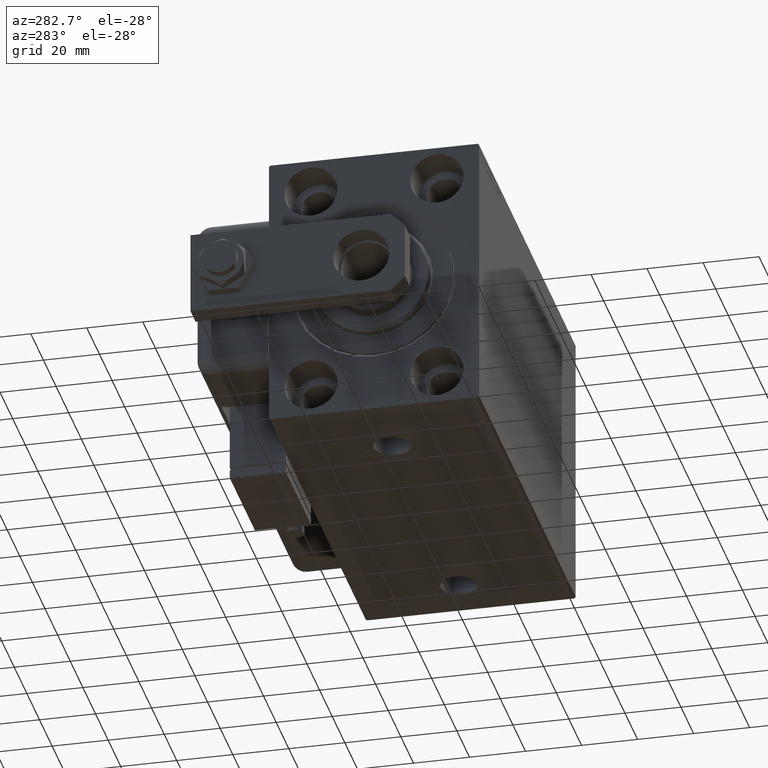
[diagram: clean part render]
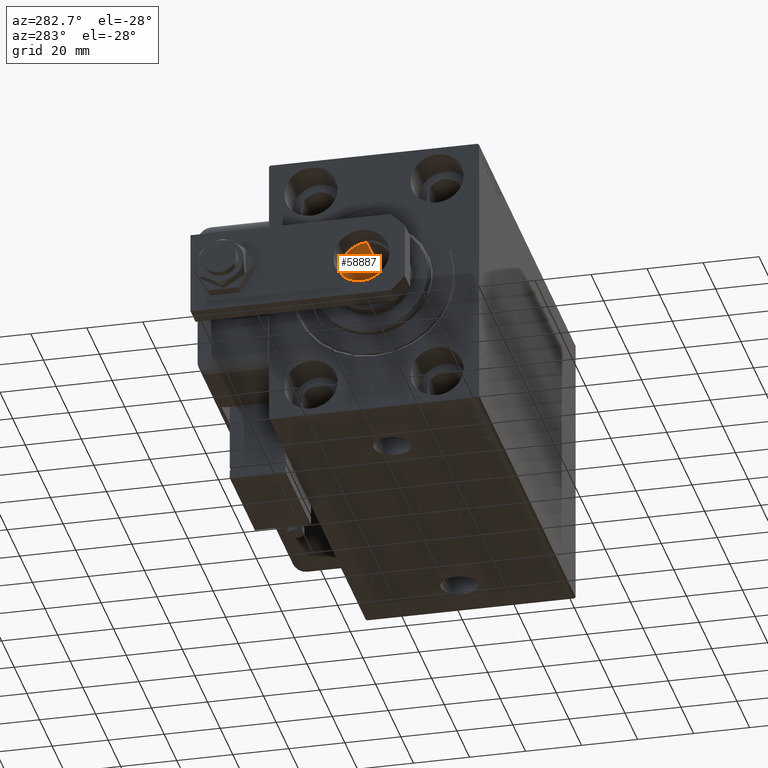
[diagram: same view with one face highlighted and labeled with its STEP entity id]
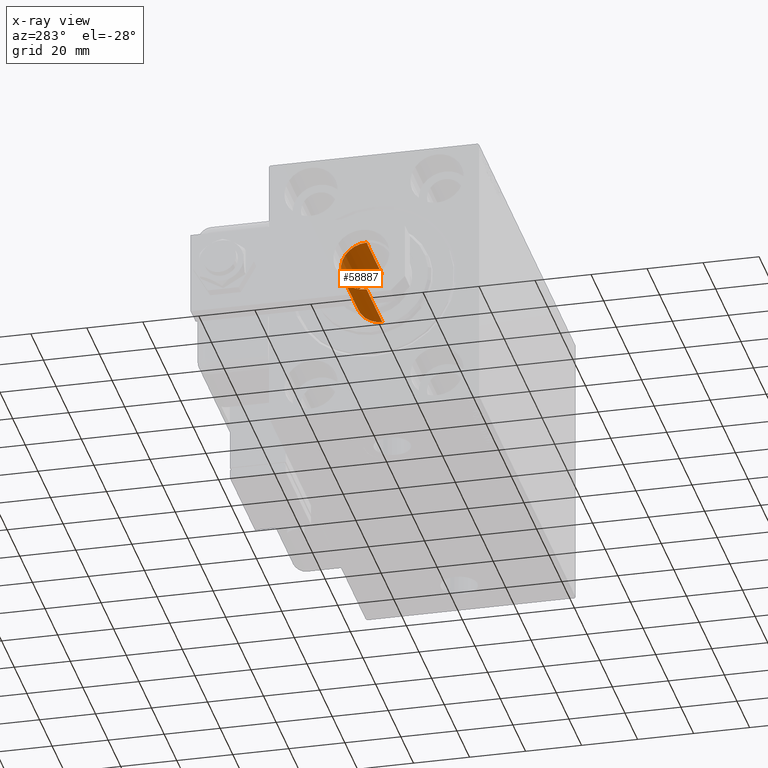
[diagram: x-ray of the same camera — body ghosted, the highlighted face saturated]
A machine part, auxiliary view. The second image highlights one B-rep face of the part: STEP entity #58887.
The next image is the same camera in x-ray: the body ghosted, the highlighted face saturated — about 6% of this face is hidden behind the body in this view.
In plain terms, the highlighted cylindrical surface (edge-blend (fillet) strip) has radius 9.25 mm, axis along (-1, 0, 0).
Its self-contained STEP definition (entity closure, byte-faithful):
#789 = CARTESIAN_POINT ( 'NONE',  ( 9.249999999999994671, 0.000000000000000000, 126.0000000000000284 ) ) ;
#5623 = CIRCLE ( 'NONE', #51006, 9.249999999999994671 ) ;
#9274 = EDGE_CURVE ( 'NONE', #38873, #38637, #10210, .T. ) ;
#10096 = CARTESIAN_POINT ( 'NONE',  ( 0.000000000000000000, 0.000000000000000000, 151.0000000000000284 ) ) ;
#10210 = LINE ( 'NONE', #14829, #12020 ) ;
#12020 = VECTOR ( 'NONE', #33675, 1000.000000000000000 ) ;
#14829 = CARTESIAN_POINT ( 'NONE',  ( 9.249999999999994671, 0.000000000000000000, 151.0000000000000284 ) ) ;
#16535 = ORIENTED_EDGE ( 'NONE', *, *, #9274, .T. ) ;
#19364 = CYLINDRICAL_SURFACE ( 'NONE', #58765, 9.249999999999994671 ) ;
#20808 = AXIS2_PLACEMENT_3D ( 'NONE', #52434, #32674, #27742 ) ;
#23190 = CARTESIAN_POINT ( 'NONE',  ( 9.249999999999994671, 0.000000000000000000, 150.7000000000000171 ) ) ;
#23309 = EDGE_CURVE ( 'NONE', #38637, #47738, #5623, .T. ) ;
#24361 = CARTESIAN_POINT ( 'NONE',  ( -9.249999999999994671, 1.132798289211300909E-15, 151.0000000000000284 ) ) ;
#27742 = DIRECTION ( 'NONE',  ( 1.000000000000000000, 0.000000000000000000, 0.000000000000000000 ) ) ;
#32636 = CIRCLE ( 'NONE', #20808, 9.249999999999994671 ) ;
#32674 = DIRECTION ( 'NONE',  ( -0.000000000000000000, -0.000000000000000000, 1.000000000000000000 ) ) ;
#33271 = DIRECTION ( 'NONE',  ( 1.000000000000000000, 0.000000000000000000, 0.000000000000000000 ) ) ;
#33675 = DIRECTION ( 'NONE',  ( -0.000000000000000000, -0.000000000000000000, 1.000000000000000000 ) ) ;
#33876 = DIRECTION ( 'NONE',  ( 0.000000000000000000, 0.000000000000000000, 1.000000000000000000 ) ) ;
#34971 = ORIENTED_EDGE ( 'NONE', *, *, #36951, .F. ) ;
#36951 = EDGE_CURVE ( 'NONE', #38873, #47688, #32636, .T. ) ;
#38637 = VERTEX_POINT ( 'NONE', #23190 ) ;
#38873 = VERTEX_POINT ( 'NONE', #789 ) ;
#39505 = LINE ( 'NONE', #24361, #39658 ) ;
#39658 = VECTOR ( 'NONE', #43852, 1000.000000000000000 ) ;
#40859 = CARTESIAN_POINT ( 'NONE',  ( -9.249999999999994671, 1.132798289211300909E-15, 126.0000000000000284 ) ) ;
#42681 = CARTESIAN_POINT ( 'NONE',  ( -9.249999999999994671, 1.132798289211300909E-15, 150.7000000000000171 ) ) ;
#42858 = DIRECTION ( 'NONE',  ( 1.000000000000000000, 0.000000000000000000, 0.000000000000000000 ) ) ;
#43168 = DIRECTION ( 'NONE',  ( -0.000000000000000000, -0.000000000000000000, 1.000000000000000000 ) ) ;
#43469 = FACE_OUTER_BOUND ( 'NONE', #45300, .T. ) ;
#43852 = DIRECTION ( 'NONE',  ( -0.000000000000000000, -0.000000000000000000, 1.000000000000000000 ) ) ;
#45300 = EDGE_LOOP ( 'NONE', ( #50186, #34971, #16535, #58694 ) ) ;
#47688 = VERTEX_POINT ( 'NONE', #40859 ) ;
#47738 = VERTEX_POINT ( 'NONE', #42681 ) ;
#49928 = EDGE_CURVE ( 'NONE', #47688, #47738, #39505, .T. ) ;
#50186 = ORIENTED_EDGE ( 'NONE', *, *, #49928, .F. ) ;
#51006 = AXIS2_PLACEMENT_3D ( 'NONE', #58831, #33876, #42858 ) ;
#52434 = CARTESIAN_POINT ( 'NONE',  ( 0.000000000000000000, 0.000000000000000000, 126.0000000000000284 ) ) ;
#58694 = ORIENTED_EDGE ( 'NONE', *, *, #23309, .T. ) ;
#58765 = AXIS2_PLACEMENT_3D ( 'NONE', #10096, #43168, #33271 ) ;
#58831 = CARTESIAN_POINT ( 'NONE',  ( 0.000000000000000000, 0.000000000000000000, 150.7000000000000171 ) ) ;
#58887 = ADVANCED_FACE ( 'NONE', ( #43469 ), #19364, .F. ) ;